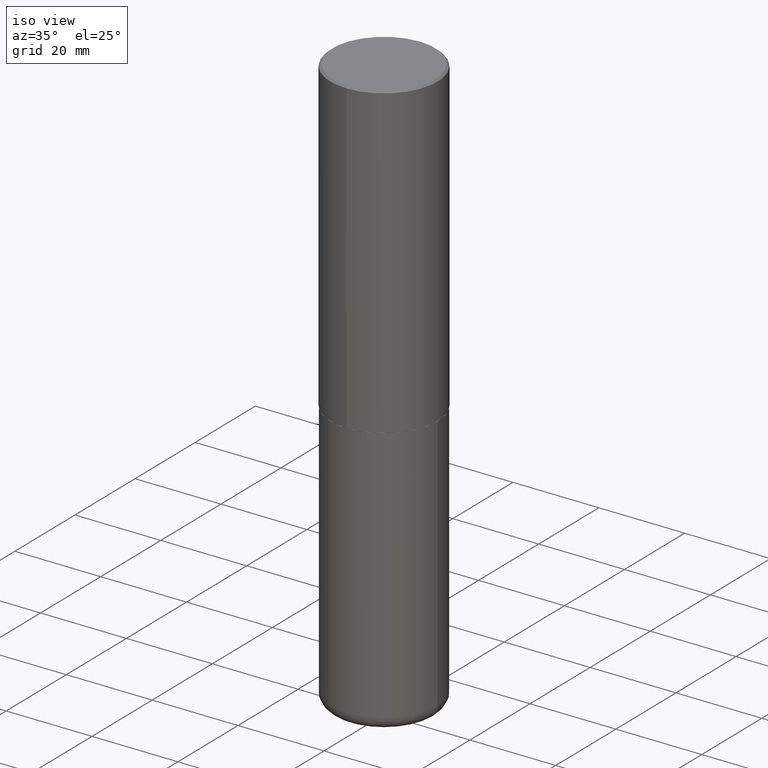
[diagram: clean part render]
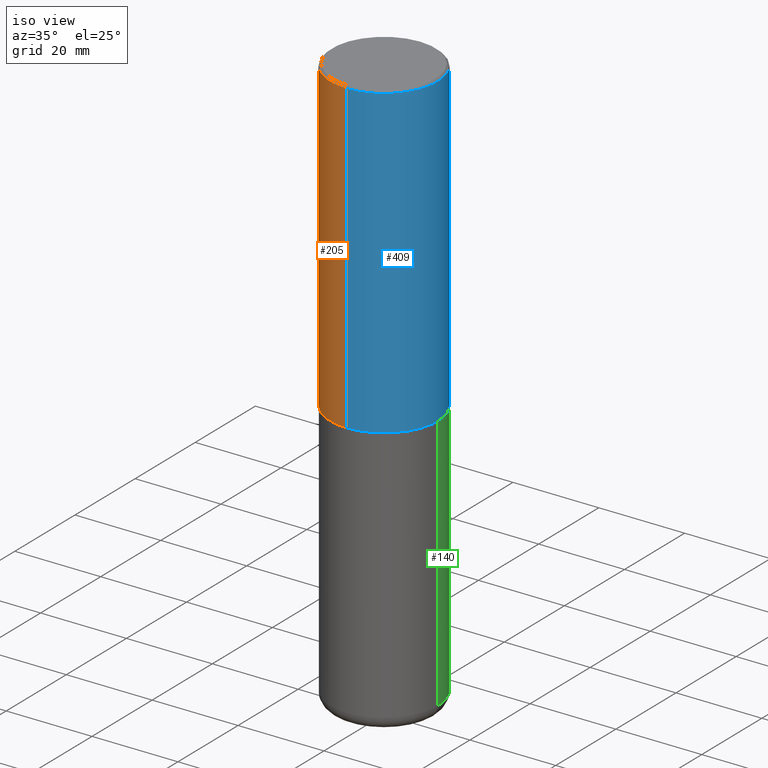
[diagram: same view with three faces highlighted in distinct colors, each labeled with its STEP entity id]
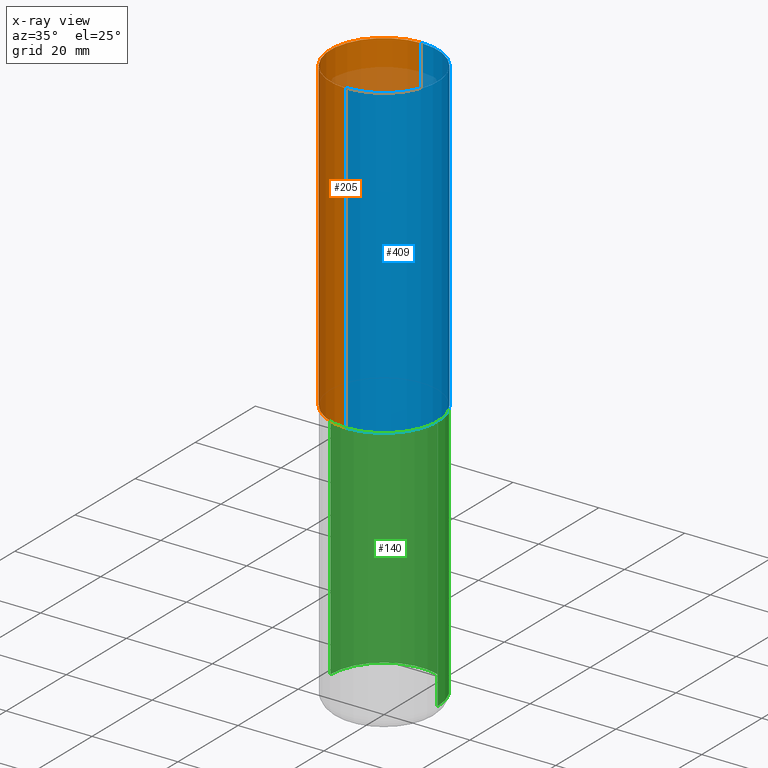
[diagram: x-ray of the same camera — body ghosted, the three highlighted faces saturated]
A machine part, iso view with three faces highlighted in distinct colors.
The next image is the same camera in x-ray (body ghosted, the three faces saturated) — at least one of them is partly hidden behind the body in this view.
Their STEP definitions:

[orange] entity #205 — the highlighted cylindrical surface (partial cylindrical patch) has radius 12.5006 mm, axis along (-0, 0, 1).
#17 = VECTOR ( 'NONE', #135, 39.37007874015748143 ) ;
#28 = CARTESIAN_POINT ( 'NONE',  ( 3.496936074043369184E-15, 0.4921499999999904285, -2.833700000000002106 ) ) ;
#30 = AXIS2_PLACEMENT_3D ( 'NONE', #216, #370, #148 ) ;
#40 = DIRECTION ( 'NONE',  ( -2.445229172240879899E-29, 3.491824508290438219E-15, 1.000000000000000000 ) ) ;
#45 = VERTEX_POINT ( 'NONE', #69 ) ;
#52 = AXIS2_PLACEMENT_3D ( 'NONE', #251, #94, #55 ) ;
#54 = CARTESIAN_POINT ( 'NONE',  ( 3.436665081823296171E-15, 0.4921499999999999209, -0.02000000000000182535 ) ) ;
#55 = DIRECTION ( 'NONE',  ( -6.982962677686265922E-15, -1.000000000000000000, 3.330506545156063891E-15 ) ) ;
#65 = CARTESIAN_POINT ( 'NONE',  ( 4.890458344481786073E-31, -6.983649016580912824E-17, -0.02000000000000010797 ) ) ;
#69 = CARTESIAN_POINT ( 'NONE',  ( -3.376394089603258262E-15, -0.4921500000000000319, -0.01999999999999838712 ) ) ;
#80 = CIRCLE ( 'NONE', #255, 0.4921499999999999764 ) ;
#89 = ORIENTED_EDGE ( 'NONE', *, *, #356, .T. ) ;
#90 = CYLINDRICAL_SURFACE ( 'NONE', #30, 0.4921500000000000874 ) ;
#94 = DIRECTION ( 'NONE',  ( -2.445229172240879899E-29, 3.491824508290438219E-15, 1.000000000000000000 ) ) ;
#99 = DIRECTION ( 'NONE',  ( -2.445229172240879899E-29, 3.491824508290438613E-15, 1.000000000000000000 ) ) ;
#135 = DIRECTION ( 'NONE',  ( -2.445229172240879899E-29, 3.491824508290438613E-15, 1.000000000000000000 ) ) ;
#139 = VERTEX_POINT ( 'NONE', #210 ) ;
#148 = DIRECTION ( 'NONE',  ( -6.982962677686265922E-15, -1.000000000000000000, 3.491824508290438219E-15 ) ) ;
#156 = VERTEX_POINT ( 'NONE', #54 ) ;
#167 = ORIENTED_EDGE ( 'NONE', *, *, #381, .F. ) ;
#186 = EDGE_CURVE ( 'NONE', #322, #139, #385, .T. ) ;
#203 = LINE ( 'NONE', #334, #17 ) ;
#205 = ADVANCED_FACE ( 'NONE', ( #294 ), #90, .T. ) ;
#210 = CARTESIAN_POINT ( 'NONE',  ( -3.436665081823228329E-15, -0.4921500000000101904, -2.833699999999998997 ) ) ;
#216 = CARTESIAN_POINT ( 'NONE',  ( 0.000000000000000000, 0.000000000000000000, 0.000000000000000000 ) ) ;
#227 = EDGE_LOOP ( 'NONE', ( #383, #306, #89, #167 ) ) ;
#251 = CARTESIAN_POINT ( 'NONE',  ( 6.929045905378983914E-29, -9.894783109142616722E-15, -2.833700000000000330 ) ) ;
#255 = AXIS2_PLACEMENT_3D ( 'NONE', #65, #40, #417 ) ;
#294 = FACE_OUTER_BOUND ( 'NONE', #227, .T. ) ;
#306 = ORIENTED_EDGE ( 'NONE', *, *, #186, .T. ) ;
#322 = VERTEX_POINT ( 'NONE', #28 ) ;
#334 = CARTESIAN_POINT ( 'NONE',  ( -3.436665081823296565E-15, -0.4921500000000000874, 1.718501431755139545E-15 ) ) ;
#339 = CARTESIAN_POINT ( 'NONE',  ( 3.496936074043333291E-15, 0.4921500000000000874, -1.718501431755139545E-15 ) ) ;
#356 = EDGE_CURVE ( 'NONE', #139, #45, #203, .T. ) ;
#359 = LINE ( 'NONE', #339, #414 ) ;
#370 = DIRECTION ( 'NONE',  ( -2.445229172240879899E-29, 3.491824508290438219E-15, 1.000000000000000000 ) ) ;
#373 = EDGE_CURVE ( 'NONE', #322, #156, #359, .T. ) ;
#381 = EDGE_CURVE ( 'NONE', #156, #45, #80, .T. ) ;
#383 = ORIENTED_EDGE ( 'NONE', *, *, #373, .F. ) ;
#385 = CIRCLE ( 'NONE', #52, 0.4921500000000003094 ) ;
#414 = VECTOR ( 'NONE', #99, 39.37007874015748143 ) ;
#417 = DIRECTION ( 'NONE',  ( -6.982962677686265922E-15, -1.000000000000000000, 3.495297233588267464E-15 ) ) ;

[blue] entity #409 — the highlighted cylindrical surface (partial cylindrical patch) has radius 12.5006 mm, axis along (-0, 0, 1).
#17 = VECTOR ( 'NONE', #135, 39.37007874015748143 ) ;
#23 = CIRCLE ( 'NONE', #119, 0.4921500000000003094 ) ;
#27 = DIRECTION ( 'NONE',  ( -6.982962677686265922E-15, -1.000000000000000000, 3.491824508290438219E-15 ) ) ;
#28 = CARTESIAN_POINT ( 'NONE',  ( 3.496936074043369184E-15, 0.4921499999999904285, -2.833700000000002106 ) ) ;
#44 = CARTESIAN_POINT ( 'NONE',  ( 0.000000000000000000, 0.000000000000000000, 0.000000000000000000 ) ) ;
#45 = VERTEX_POINT ( 'NONE', #69 ) ;
#54 = CARTESIAN_POINT ( 'NONE',  ( 3.436665081823296171E-15, 0.4921499999999999209, -0.02000000000000182535 ) ) ;
#69 = CARTESIAN_POINT ( 'NONE',  ( -3.376394089603258262E-15, -0.4921500000000000319, -0.01999999999999838712 ) ) ;
#77 = DIRECTION ( 'NONE',  ( -2.445229172240879899E-29, 3.491824508290438219E-15, 1.000000000000000000 ) ) ;
#92 = CYLINDRICAL_SURFACE ( 'NONE', #143, 0.4921500000000000874 ) ;
#99 = DIRECTION ( 'NONE',  ( -2.445229172240879899E-29, 3.491824508290438613E-15, 1.000000000000000000 ) ) ;
#101 = ORIENTED_EDGE ( 'NONE', *, *, #373, .T. ) ;
#115 = EDGE_CURVE ( 'NONE', #45, #156, #323, .T. ) ;
#119 = AXIS2_PLACEMENT_3D ( 'NONE', #252, #77, #296 ) ;
#135 = DIRECTION ( 'NONE',  ( -2.445229172240879899E-29, 3.491824508290438613E-15, 1.000000000000000000 ) ) ;
#139 = VERTEX_POINT ( 'NONE', #210 ) ;
#143 = AXIS2_PLACEMENT_3D ( 'NONE', #44, #232, #27 ) ;
#145 = ORIENTED_EDGE ( 'NONE', *, *, #317, .T. ) ;
#156 = VERTEX_POINT ( 'NONE', #54 ) ;
#169 = FACE_OUTER_BOUND ( 'NONE', #238, .T. ) ;
#202 = DIRECTION ( 'NONE',  ( -6.982962677686265922E-15, -1.000000000000000000, 3.495297233588267464E-15 ) ) ;
#203 = LINE ( 'NONE', #334, #17 ) ;
#210 = CARTESIAN_POINT ( 'NONE',  ( -3.436665081823228329E-15, -0.4921500000000101904, -2.833699999999998997 ) ) ;
#232 = DIRECTION ( 'NONE',  ( -2.445229172240879899E-29, 3.491824508290438219E-15, 1.000000000000000000 ) ) ;
#238 = EDGE_LOOP ( 'NONE', ( #145, #101, #275, #396 ) ) ;
#252 = CARTESIAN_POINT ( 'NONE',  ( 6.929045905378983914E-29, -9.894783109142616722E-15, -2.833700000000000330 ) ) ;
#269 = CARTESIAN_POINT ( 'NONE',  ( 4.890458344481786073E-31, -6.983649016580912824E-17, -0.02000000000000010797 ) ) ;
#275 = ORIENTED_EDGE ( 'NONE', *, *, #115, .F. ) ;
#296 = DIRECTION ( 'NONE',  ( -6.982962677686265922E-15, -1.000000000000000000, 3.330506545156063891E-15 ) ) ;
#317 = EDGE_CURVE ( 'NONE', #139, #322, #23, .T. ) ;
#322 = VERTEX_POINT ( 'NONE', #28 ) ;
#323 = CIRCLE ( 'NONE', #418, 0.4921499999999999764 ) ;
#334 = CARTESIAN_POINT ( 'NONE',  ( -3.436665081823296565E-15, -0.4921500000000000874, 1.718501431755139545E-15 ) ) ;
#337 = DIRECTION ( 'NONE',  ( -2.445229172240879899E-29, 3.491824508290438219E-15, 1.000000000000000000 ) ) ;
#339 = CARTESIAN_POINT ( 'NONE',  ( 3.496936074043333291E-15, 0.4921500000000000874, -1.718501431755139545E-15 ) ) ;
#356 = EDGE_CURVE ( 'NONE', #139, #45, #203, .T. ) ;
#359 = LINE ( 'NONE', #339, #414 ) ;
#373 = EDGE_CURVE ( 'NONE', #322, #156, #359, .T. ) ;
#396 = ORIENTED_EDGE ( 'NONE', *, *, #356, .F. ) ;
#409 = ADVANCED_FACE ( 'NONE', ( #169 ), #92, .T. ) ;
#414 = VECTOR ( 'NONE', #99, 39.37007874015748143 ) ;
#418 = AXIS2_PLACEMENT_3D ( 'NONE', #269, #337, #202 ) ;

[green] entity #140 — the highlighted cylindrical surface (partial cylindrical patch) has radius 12.5006 mm, axis along (-0, 0, 1).
#6 = DIRECTION ( 'NONE',  ( -2.445468806185136877E-29, 3.491481338843145188E-15, 1.000000000000000000 ) ) ;
#18 = CARTESIAN_POINT ( 'NONE',  ( 0.000000000000000000, 0.000000000000000000, 0.000000000000000000 ) ) ;
#33 = CARTESIAN_POINT ( 'NONE',  ( -0.4921499999999999764, 3.496936074043332897E-15, -2.420853904668951509E-29 ) ) ;
#34 = CARTESIAN_POINT ( 'NONE',  ( -0.4921499999999999764, -1.052415468648297289E-14, -2.834700000000000220 ) ) ;
#36 = ORIENTED_EDGE ( 'NONE', *, *, #298, .F. ) ;
#37 = VECTOR ( 'NONE', #122, 39.37007874015748143 ) ;
#53 = DIRECTION ( 'NONE',  ( -2.445468806185136597E-29, 3.491481338843145583E-15, 1.000000000000000000 ) ) ;
#61 = CIRCLE ( 'NONE', #98, 0.4921499999999999764 ) ;
#68 = CARTESIAN_POINT ( 'NONE',  ( 0.4921499999999999764, -2.158154445165724138E-14, -5.196900000000000297 ) ) ;
#70 = EDGE_LOOP ( 'NONE', ( #295, #390, #188, #36 ) ) ;
#81 = DIRECTION ( 'NONE',  ( 1.000000000000000000, -6.982962677686265922E-15, 4.876176775795935793E-29 ) ) ;
#84 = CARTESIAN_POINT ( 'NONE',  ( 0.4921499999999999764, -1.333396723304196175E-14, -2.834700000000000220 ) ) ;
#93 = VERTEX_POINT ( 'NONE', #129 ) ;
#95 = EDGE_CURVE ( 'NONE', #93, #358, #259, .T. ) ;
#98 = AXIS2_PLACEMENT_3D ( 'NONE', #102, #228, #236 ) ;
#102 = CARTESIAN_POINT ( 'NONE',  ( 1.270885683886353718E-28, -1.814487936983394718E-14, -5.196900000000000297 ) ) ;
#107 = EDGE_CURVE ( 'NONE', #177, #93, #61, .T. ) ;
#122 = DIRECTION ( 'NONE',  ( -2.445468806185136877E-29, 3.491481338843145188E-15, 1.000000000000000000 ) ) ;
#129 = CARTESIAN_POINT ( 'NONE',  ( -0.4921499999999999764, -1.464794329579061349E-14, -5.196900000000000297 ) ) ;
#140 = ADVANCED_FACE ( 'NONE', ( #372 ), #316, .T. ) ;
#149 = DIRECTION ( 'NONE',  ( -2.445468806185136597E-29, 3.491481338843145583E-15, 1.000000000000000000 ) ) ;
#177 = VERTEX_POINT ( 'NONE', #68 ) ;
#183 = VECTOR ( 'NONE', #6, 39.37007874015748143 ) ;
#185 = DIRECTION ( 'NONE',  ( 1.000000000000000000, -6.982962677686265922E-15, 0.000000000000000000 ) ) ;
#188 = ORIENTED_EDGE ( 'NONE', *, *, #278, .F. ) ;
#217 = AXIS2_PLACEMENT_3D ( 'NONE', #293, #53, #185 ) ;
#228 = DIRECTION ( 'NONE',  ( -2.445468806185136597E-29, 3.491481338843145583E-15, 1.000000000000000000 ) ) ;
#236 = DIRECTION ( 'NONE',  ( 1.000000000000000000, -6.982962677686265922E-15, 0.000000000000000000 ) ) ;
#259 = LINE ( 'NONE', #33, #183 ) ;
#264 = VERTEX_POINT ( 'NONE', #84 ) ;
#278 = EDGE_CURVE ( 'NONE', #264, #358, #283, .T. ) ;
#283 = CIRCLE ( 'NONE', #217, 0.4921499999999999764 ) ;
#293 = CARTESIAN_POINT ( 'NONE',  ( 6.932170424893007423E-29, -9.897302151218665974E-15, -2.834700000000000220 ) ) ;
#295 = ORIENTED_EDGE ( 'NONE', *, *, #107, .T. ) ;
#298 = EDGE_CURVE ( 'NONE', #177, #264, #329, .T. ) ;
#316 = CYLINDRICAL_SURFACE ( 'NONE', #342, 0.4921499999999999764 ) ;
#329 = LINE ( 'NONE', #413, #37 ) ;
#342 = AXIS2_PLACEMENT_3D ( 'NONE', #18, #149, #81 ) ;
#358 = VERTEX_POINT ( 'NONE', #34 ) ;
#372 = FACE_OUTER_BOUND ( 'NONE', #70, .T. ) ;
#390 = ORIENTED_EDGE ( 'NONE', *, *, #95, .T. ) ;
#413 = CARTESIAN_POINT ( 'NONE',  ( 0.4921499999999999764, -3.436665081823295777E-15, 2.399810400207969603E-29 ) ) ;